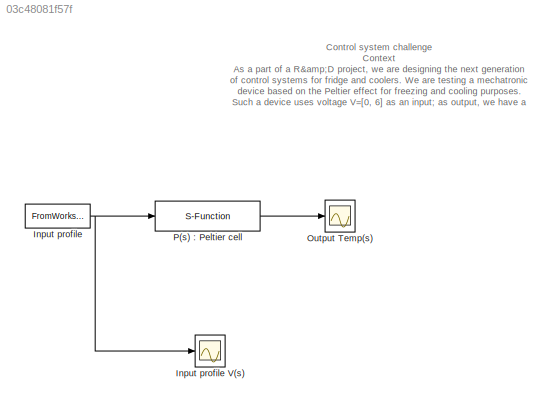
MODEL slx_03c48081f57f
KIND model
CONFIG AbsTol = auto
CONFIG EnableMultiTasking = on
CONFIG FixedStep = 1/1000
CONFIG MaxStep = auto
CONFIG MinStep = auto
CONFIG RelTol = 1e-3
CONFIG SampleTimeConstraint = Unconstrained
CONFIG Solver = ode3
CONFIG SolverName = ode3
CONFIG StartTime = 0.0
CONFIG StopTime = 100
BLOCK [FromWorkspace] Input profile
  SampleTime = 0
  VariableName = InputProfile
  ZeroCross = on
BLOCK [Scope] Input profile V(s)
  NumInputPorts = 1
  Ports = [1]
  ScopeSpecificationString = C++SS(StrPVP('Location','[5, 49, 1921, 1039]'),StrPVP('Open','off'),MxPVP('AxesTitles',24,'struct(''axes1'',''%<SignalLabel>'')'),MxPVP('ScopeGraphics',28,'struct(''FigureColor'',''[0.5 0.5 0.5]'',''AxesColor'',''[0 0 0]'',''AxesTickColor'',''[1 1 1]'',''LineColors'',''[1 1 0;1 0 1;0 1 1;1 0 0;0 1 0;0 0 1]'',''LineStyles'',''-|-|-|-|-|-'',''LineWidths'',''[0.5 0.5 0.5 0.5 0.5 0.5]'',''MarkerStyles...<+285ch>
BLOCK [Scope] Output Temp(s)
  NumInputPorts = 1
  Ports = [1]
  ScopeSpecificationString = Simulink.scopes.TimeScopeBlockCfg('CurrentConfiguration', extmgr.ConfigurationSet(extmgr.Configuration('Core','General UI',true),extmgr.Configuration('Core','Source UI',true),extmgr.Configuration('Sources','WiredSimulink',true,'DataLogging',true,'DataLoggingVariableName','OutputRead','DataLoggingSaveFormat','Array','DataLoggingDecimation','1','DataLoggingDecimateData',true),extmgr.Configuration('V...<+1716ch>
BLOCK [S-Function] P(s) : Peltier cell
  EnableBusSupport = off
  FunctionName = Peltier_Block
  Ports = [1, 1]
  SFcnIsStateOwnerBlock = off
  SFunctionDeploymentMode = off
ANNOTATION (root): Control system challenge Context As a part of a R&D project, we are designing the next generation of control systems for fridge and coolers. We are testing a mechatronic device based on the Peltier effect for freezing and cooling purposes. Such a device uses voltage V=[0, 6] as an input; as output, we have a temperature between the (theoretical) range T = [-10, T_{amb}]. Such device is manufacture...<+1104ch>
NET Input profile:1 -> Input profile V(s):1, P(s) : Peltier cell:1
LINE P(s) : Peltier cell:1 -> Output Temp(s):1
note: NET lines group one-source signal fan-out (src -> all destinations, sorted); 1:1 wires keep LINE
